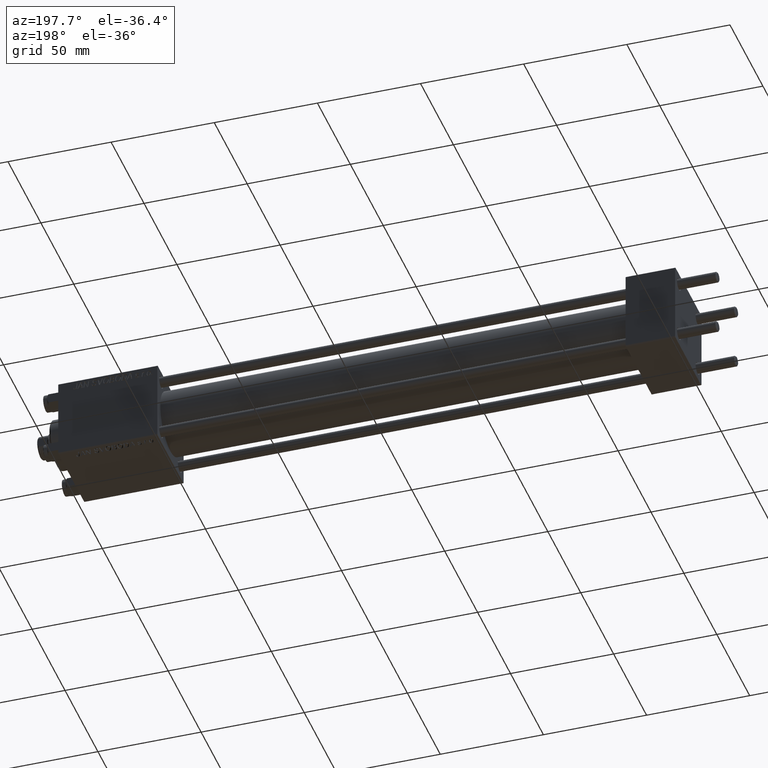
[diagram: clean part render]
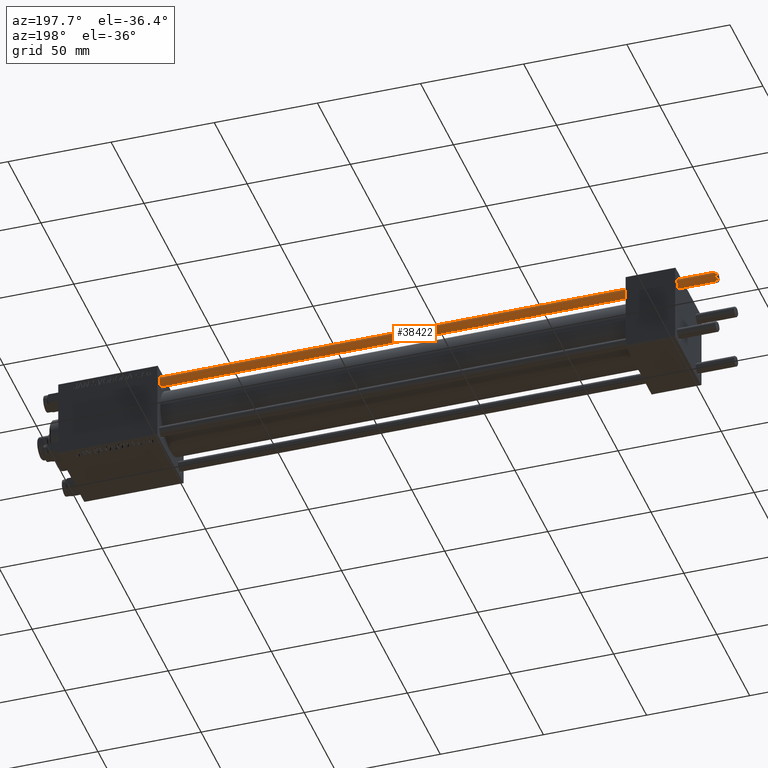
[diagram: same view with one face highlighted and labeled with its STEP entity id]
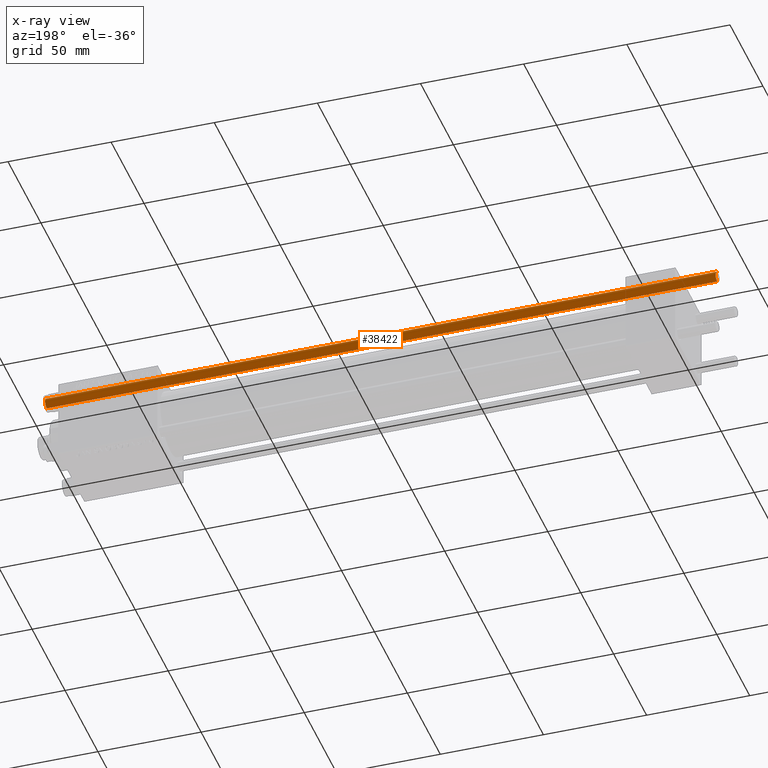
[diagram: x-ray of the same camera — body ghosted, the highlighted face saturated]
A machine part, auxiliary view. The second image highlights one B-rep face of the part: STEP entity #38422.
The next image is the same camera in x-ray: the body ghosted, the highlighted face saturated — about 0% of this face is hidden behind the body in this view.
In plain terms, the highlighted cylindrical surface (edge-blend (fillet) strip) has radius 2.5 mm, axis along (-1, -0, -0).
Its self-contained STEP definition (entity closure, byte-faithful):
#2037 = ORIENTED_EDGE ( 'NONE', *, *, #7266, .T. ) ;
#2107 = CARTESIAN_POINT ( 'NONE',  ( -2.500000000000000000, 0.000000000000000000, 326.0000000000000000 ) ) ;
#4182 = DIRECTION ( 'NONE',  ( -0.000000000000000000, -0.000000000000000000, -1.000000000000000000 ) ) ;
#5779 = CARTESIAN_POINT ( 'NONE',  ( 0.000000000000000000, 0.000000000000000000, 326.0000000000000000 ) ) ;
#7266 = EDGE_CURVE ( 'NONE', #44361, #46412, #41214, .T. ) ;
#10664 = AXIS2_PLACEMENT_3D ( 'NONE', #37932, #42201, #41225 ) ;
#10825 = EDGE_CURVE ( 'NONE', #33432, #44361, #15522, .T. ) ;
#10943 = AXIS2_PLACEMENT_3D ( 'NONE', #31211, #35490, #39276 ) ;
#11921 = CARTESIAN_POINT ( 'NONE',  ( -2.500000000000000000, 0.000000000000000000, 0.4999999999999449329 ) ) ;
#15522 = LINE ( 'NONE', #42457, #43718 ) ;
#16072 = AXIS2_PLACEMENT_3D ( 'NONE', #5779, #36769, #21154 ) ;
#17234 = EDGE_CURVE ( 'NONE', #19286, #33432, #30239, .T. ) ;
#19286 = VERTEX_POINT ( 'NONE', #30737 ) ;
#20738 = EDGE_CURVE ( 'NONE', #19286, #46412, #25016, .T. ) ;
#20749 = ORIENTED_EDGE ( 'NONE', *, *, #10825, .T. ) ;
#21154 = DIRECTION ( 'NONE',  ( -1.000000000000000000, 0.000000000000000000, 0.000000000000000000 ) ) ;
#21408 = FACE_OUTER_BOUND ( 'NONE', #23908, .T. ) ;
#23908 = EDGE_LOOP ( 'NONE', ( #34425, #20749, #2037, #44386 ) ) ;
#25016 = LINE ( 'NONE', #2107, #36788 ) ;
#30239 = CIRCLE ( 'NONE', #10943, 2.500000000000000000 ) ;
#30737 = CARTESIAN_POINT ( 'NONE',  ( -2.500000000000000000, 0.000000000000000000, 325.5000000000000000 ) ) ;
#31211 = CARTESIAN_POINT ( 'NONE',  ( 0.000000000000000000, 0.000000000000000000, 325.5000000000000000 ) ) ;
#33432 = VERTEX_POINT ( 'NONE', #44498 ) ;
#34425 = ORIENTED_EDGE ( 'NONE', *, *, #17234, .T. ) ;
#35490 = DIRECTION ( 'NONE',  ( 0.000000000000000000, 0.000000000000000000, -1.000000000000000000 ) ) ;
#35854 = CARTESIAN_POINT ( 'NONE',  ( 2.500000000000000000, 3.061616997868383141E-16, 0.4999999999999449329 ) ) ;
#36769 = DIRECTION ( 'NONE',  ( -0.000000000000000000, -0.000000000000000000, -1.000000000000000000 ) ) ;
#36788 = VECTOR ( 'NONE', #39385, 1000.000000000000000 ) ;
#37932 = CARTESIAN_POINT ( 'NONE',  ( 0.000000000000000000, 0.000000000000000000, 0.4999999999999449329 ) ) ;
#38422 = ADVANCED_FACE ( 'NONE', ( #21408 ), #47584, .T. ) ;
#39276 = DIRECTION ( 'NONE',  ( 1.000000000000000000, 0.000000000000000000, 0.000000000000000000 ) ) ;
#39385 = DIRECTION ( 'NONE',  ( -0.000000000000000000, -0.000000000000000000, -1.000000000000000000 ) ) ;
#41214 = CIRCLE ( 'NONE', #10664, 2.500000000000000000 ) ;
#41225 = DIRECTION ( 'NONE',  ( 1.000000000000000000, 0.000000000000000000, 0.000000000000000000 ) ) ;
#42201 = DIRECTION ( 'NONE',  ( -0.000000000000000000, -0.000000000000000000, 1.000000000000000000 ) ) ;
#42457 = CARTESIAN_POINT ( 'NONE',  ( 2.500000000000000000, 3.061616997868383141E-16, 326.0000000000000000 ) ) ;
#43718 = VECTOR ( 'NONE', #4182, 1000.000000000000000 ) ;
#44361 = VERTEX_POINT ( 'NONE', #35854 ) ;
#44386 = ORIENTED_EDGE ( 'NONE', *, *, #20738, .F. ) ;
#44498 = CARTESIAN_POINT ( 'NONE',  ( 2.500000000000000000, 3.061616997868383141E-16, 325.5000000000000000 ) ) ;
#46412 = VERTEX_POINT ( 'NONE', #11921 ) ;
#47584 = CYLINDRICAL_SURFACE ( 'NONE', #16072, 2.500000000000000000 ) ;